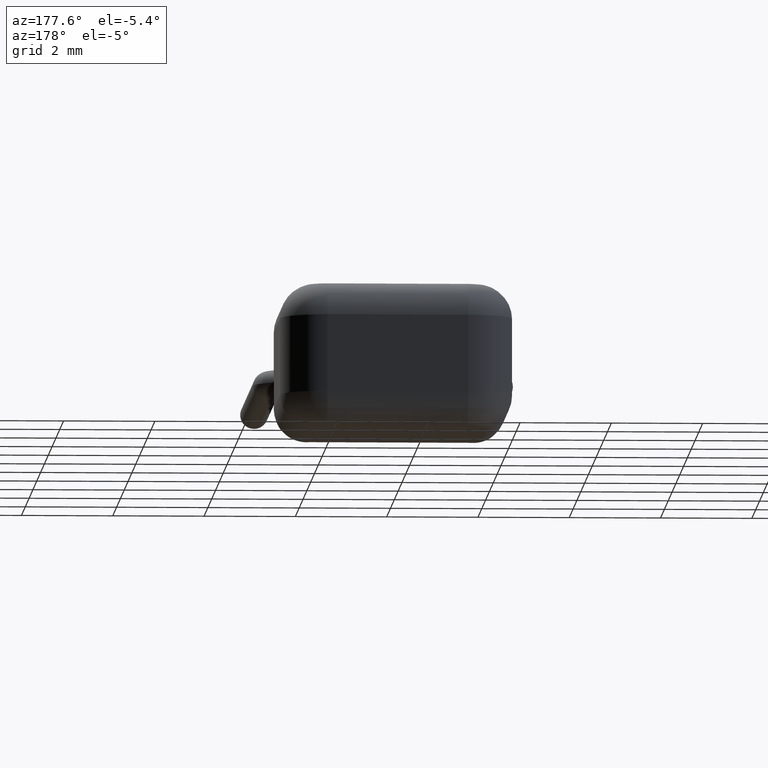
[diagram: clean part render]
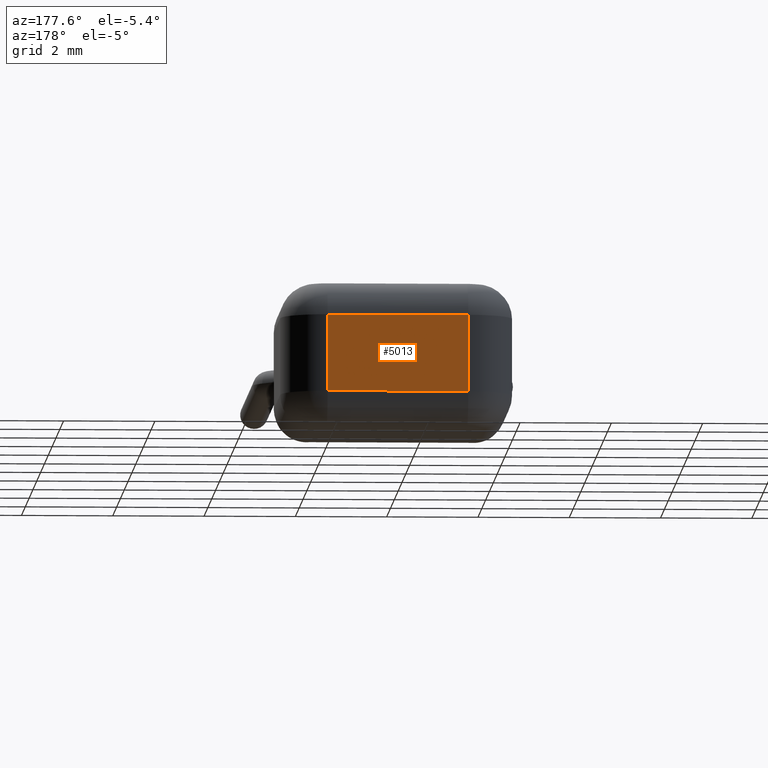
[diagram: same view with one face highlighted and labeled with its STEP entity id]
A machine part, auxiliary view. The second image highlights one B-rep face of the part: STEP entity #5013.
In plain terms, the highlighted planar face has unit normal (0, -1, 0).
Its self-contained STEP definition (entity closure, byte-faithful):
#148 = DIRECTION ( 'NONE',  ( 1.000000000000000000, -0.0000000000000000000, -0.0000000000000000000 ) ) ;
#325 = PLANE ( 'NONE',  #3703 ) ;
#460 = EDGE_CURVE ( 'NONE', #3673, #3601, #3821, .T. ) ;
#472 = DIRECTION ( 'NONE',  ( -1.000000000000000000, 0.0000000000000000000, 0.0000000000000000000 ) ) ;
#876 = VERTEX_POINT ( 'NONE', #1422 ) ;
#1005 = LINE ( 'NONE', #4449, #6403 ) ;
#1344 = CARTESIAN_POINT ( 'NONE',  ( 4.079999999999999200, 4.810760000000000100, 3.180000000000000200 ) ) ;
#1422 = CARTESIAN_POINT ( 'NONE',  ( 0.9999999999999997800, 4.810760000000000100, 2.429999999999999700 ) ) ;
#2263 = LINE ( 'NONE', #5079, #6328 ) ;
#2649 = FACE_OUTER_BOUND ( 'NONE', #3775, .T. ) ;
#2853 = ORIENTED_EDGE ( 'NONE', *, *, #460, .T. ) ;
#2936 = DIRECTION ( 'NONE',  ( 0.0000000000000000000, 0.0000000000000000000, -1.000000000000000000 ) ) ;
#2966 = DIRECTION ( 'NONE',  ( 0.0000000000000000000, -1.000000000000000000, 0.0000000000000000000 ) ) ;
#3175 = CARTESIAN_POINT ( 'NONE',  ( 0.9999999999999997800, 4.810760000000000100, 0.7500000000000002200 ) ) ;
#3258 = VECTOR ( 'NONE', #472, 1000.000000000000000 ) ;
#3280 = CARTESIAN_POINT ( 'NONE',  ( 0.9999999999999997800, 4.810760000000000100, 0.7500000000000002200 ) ) ;
#3362 = EDGE_CURVE ( 'NONE', #3601, #876, #2263, .T. ) ;
#3601 = VERTEX_POINT ( 'NONE', #3280 ) ;
#3673 = VERTEX_POINT ( 'NONE', #5435 ) ;
#3703 = AXIS2_PLACEMENT_3D ( 'NONE', #6164, #2966, #5656 ) ;
#3775 = EDGE_LOOP ( 'NONE', ( #5870, #2853, #4353, #4174 ) ) ;
#3821 = LINE ( 'NONE', #3175, #3258 ) ;
#3829 = LINE ( 'NONE', #1344, #5974 ) ;
#3853 = EDGE_CURVE ( 'NONE', #6790, #3673, #3829, .T. ) ;
#4070 = EDGE_CURVE ( 'NONE', #876, #6790, #1005, .T. ) ;
#4174 = ORIENTED_EDGE ( 'NONE', *, *, #4070, .T. ) ;
#4353 = ORIENTED_EDGE ( 'NONE', *, *, #3362, .T. ) ;
#4449 = CARTESIAN_POINT ( 'NONE',  ( 0.0000000000000000000, 4.810760000000000100, 2.429999999999999700 ) ) ;
#5013 = ADVANCED_FACE ( 'NONE', ( #2649 ), #325, .F. ) ;
#5079 = CARTESIAN_POINT ( 'NONE',  ( 0.9999999999999997800, 4.810760000000000100, 3.180000000000000200 ) ) ;
#5435 = CARTESIAN_POINT ( 'NONE',  ( 4.079999999999999200, 4.810760000000000100, 0.7500000000000002200 ) ) ;
#5656 = DIRECTION ( 'NONE',  ( 0.0000000000000000000, -0.0000000000000000000, -1.000000000000000000 ) ) ;
#5870 = ORIENTED_EDGE ( 'NONE', *, *, #3853, .T. ) ;
#5911 = CARTESIAN_POINT ( 'NONE',  ( 4.079999999999999200, 4.810760000000000100, 2.429999999999999700 ) ) ;
#5974 = VECTOR ( 'NONE', #2936, 1000.000000000000000 ) ;
#6075 = DIRECTION ( 'NONE',  ( -0.0000000000000000000, -0.0000000000000000000, 1.000000000000000000 ) ) ;
#6164 = CARTESIAN_POINT ( 'NONE',  ( 0.0000000000000000000, 4.810760000000000100, 3.180000000000000200 ) ) ;
#6328 = VECTOR ( 'NONE', #6075, 1000.000000000000000 ) ;
#6403 = VECTOR ( 'NONE', #148, 1000.000000000000000 ) ;
#6790 = VERTEX_POINT ( 'NONE', #5911 ) ;